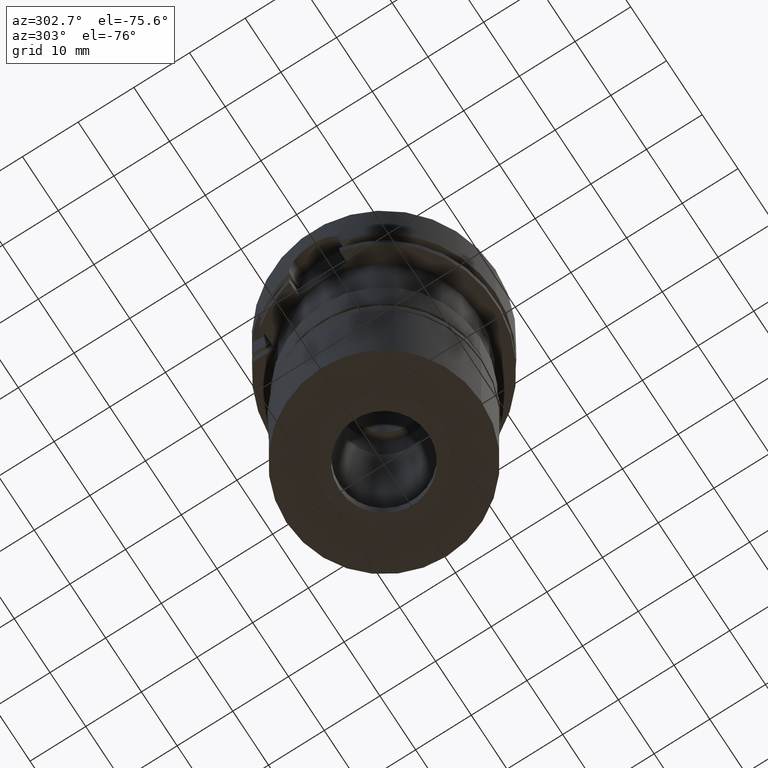
[diagram: clean part render]
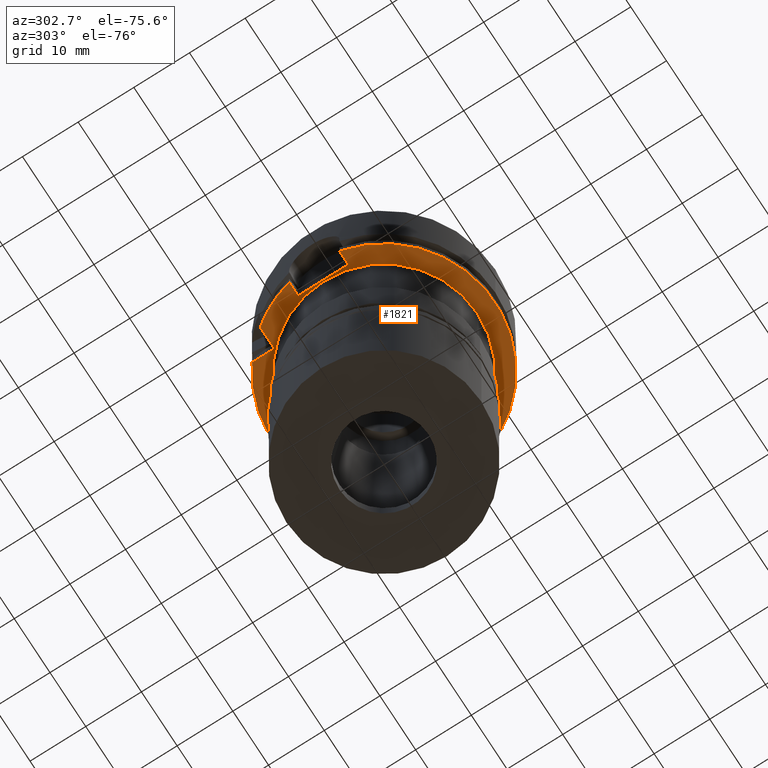
[diagram: same view with one face highlighted and labeled with its STEP entity id]
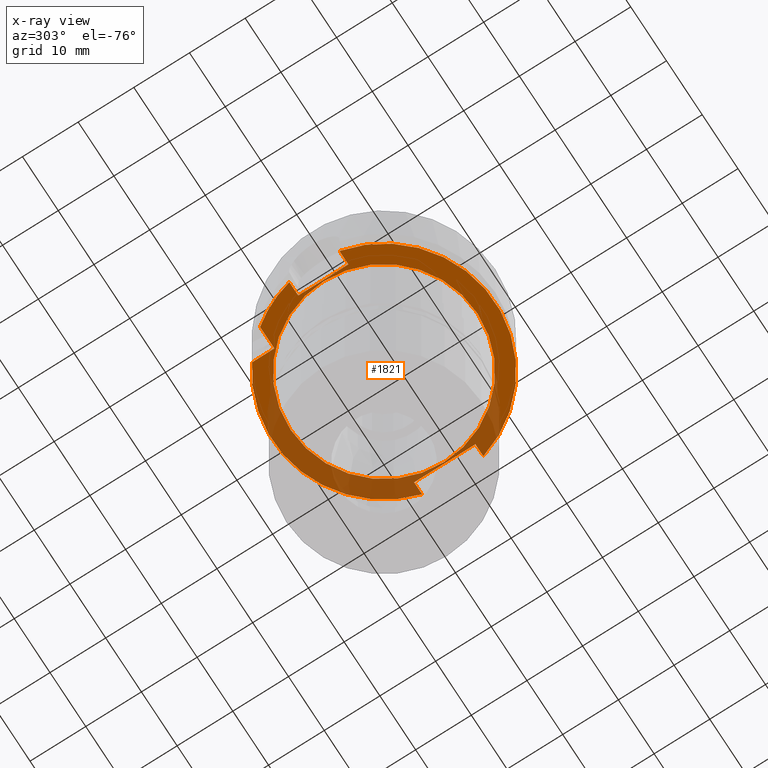
[diagram: x-ray of the same camera — body ghosted, the highlighted face saturated]
A machine part, auxiliary view. The second image highlights one B-rep face of the part: STEP entity #1821.
The next image is the same camera in x-ray: the body ghosted, the highlighted face saturated — about 39% of this face is hidden behind the body in this view.
In plain terms, the highlighted planar face has unit normal (0, 0, 1).
Its self-contained STEP definition (entity closure, byte-faithful):
#1 = AXIS2_PLACEMENT_3D ( 'NONE', #3715, #5375, #3304 ) ;
#2 = VECTOR ( 'NONE', #639, 1000.000000000000000 ) ;
#49 = DIRECTION ( 'NONE',  ( 0.0000000000000000000, 0.0000000000000000000, -1.000000000000000000 ) ) ;
#65 = VECTOR ( 'NONE', #2493, 1000.000000000000000 ) ;
#70 = DIRECTION ( 'NONE',  ( 1.000000000000000000, 0.0000000000000000000, 0.0000000000000000000 ) ) ;
#101 = VECTOR ( 'NONE', #1894, 1000.000000000000000 ) ;
#108 = EDGE_LOOP ( 'NONE', ( #5021, #1479 ) ) ;
#145 = DIRECTION ( 'NONE',  ( -1.000000000000000000, 2.550307935358999985E-14, 0.0000000000000000000 ) ) ;
#146 = EDGE_CURVE ( 'NONE', #5188, #4664, #3586, .T. ) ;
#151 = CARTESIAN_POINT ( 'NONE',  ( 17.00000000000000000, 5.500000000000000000, -20.00000000000000000 ) ) ;
#173 = ORIENTED_EDGE ( 'NONE', *, *, #4013, .T. ) ;
#312 = ORIENTED_EDGE ( 'NONE', *, *, #634, .F. ) ;
#428 = EDGE_CURVE ( 'NONE', #3517, #499, #1826, .T. ) ;
#445 = ORIENTED_EDGE ( 'NONE', *, *, #4870, .T. ) ;
#499 = VERTEX_POINT ( 'NONE', #2851 ) ;
#577 = DIRECTION ( 'NONE',  ( 0.0000000000000000000, 0.0000000000000000000, 1.000000000000000000 ) ) ;
#612 = LINE ( 'NONE', #151, #101 ) ;
#634 = EDGE_CURVE ( 'NONE', #4764, #3517, #774, .T. ) ;
#639 = DIRECTION ( 'NONE',  ( -1.000000000000000000, -1.449839272533000158E-13, 0.0000000000000000000 ) ) ;
#774 = CIRCLE ( 'NONE', #1, 20.00000000000000000 ) ;
#805 = ORIENTED_EDGE ( 'NONE', *, *, #2023, .F. ) ;
#924 = DIRECTION ( 'NONE',  ( 0.0000000000000000000, -1.000000000000000000, 0.0000000000000000000 ) ) ;
#1022 = DIRECTION ( 'NONE',  ( 0.0000000000000000000, 1.000000000000000000, 0.0000000000000000000 ) ) ;
#1193 = DIRECTION ( 'NONE',  ( 0.0000000000000000000, 0.0000000000000000000, -1.000000000000000000 ) ) ;
#1202 = VECTOR ( 'NONE', #5170, 1000.000000000000000 ) ;
#1233 = CARTESIAN_POINT ( 'NONE',  ( -19.48717526991000071, -4.500000000000000000, -20.00000000000000000 ) ) ;
#1319 = CARTESIAN_POINT ( 'NONE',  ( -17.00000000000000000, -4.500000000000000000, -20.00000000000000000 ) ) ;
#1370 = EDGE_CURVE ( 'NONE', #4664, #5188, #3105, .T. ) ;
#1372 = DIRECTION ( 'NONE',  ( 0.0000000000000000000, 0.0000000000000000000, 1.000000000000000000 ) ) ;
#1375 = AXIS2_PLACEMENT_3D ( 'NONE', #4203, #5047, #70 ) ;
#1394 = CARTESIAN_POINT ( 'NONE',  ( 0.0000000000000000000, 0.0000000000000000000, -20.00000000000000000 ) ) ;
#1479 = ORIENTED_EDGE ( 'NONE', *, *, #1370, .F. ) ;
#1565 = CIRCLE ( 'NONE', #4709, 20.00000000000000000 ) ;
#1742 = FACE_BOUND ( 'NONE', #108, .T. ) ;
#1799 = CARTESIAN_POINT ( 'NONE',  ( 19.22888452303000051, -5.500000000000000000, -20.00000000000000000 ) ) ;
#1821 = ADVANCED_FACE ( 'NONE', ( #3760, #1742 ), #2141, .F. ) ;
#1826 = LINE ( 'NONE', #1799, #3406 ) ;
#1851 = CARTESIAN_POINT ( 'NONE',  ( 0.0000000000000000000, 0.0000000000000000000, -20.00000000000000000 ) ) ;
#1894 = DIRECTION ( 'NONE',  ( 0.0000000000000000000, -1.000000000000000000, 0.0000000000000000000 ) ) ;
#1926 = AXIS2_PLACEMENT_3D ( 'NONE', #3736, #1193, #5398 ) ;
#1970 = ORIENTED_EDGE ( 'NONE', *, *, #2846, .F. ) ;
#2023 = EDGE_CURVE ( 'NONE', #3301, #4235, #5356, .T. ) ;
#2044 = VERTEX_POINT ( 'NONE', #4195 ) ;
#2080 = AXIS2_PLACEMENT_3D ( 'NONE', #5177, #577, #2237 ) ;
#2104 = CARTESIAN_POINT ( 'NONE',  ( 0.0000000000000000000, -16.80000000000000071, -20.00000000000000000 ) ) ;
#2121 = EDGE_CURVE ( 'NONE', #4235, #4764, #4283, .T. ) ;
#2141 = PLANE ( 'NONE',  #1375 ) ;
#2237 = DIRECTION ( 'NONE',  ( -0.8000000000000000444, 0.5999999999999999778, 0.0000000000000000000 ) ) ;
#2284 = CARTESIAN_POINT ( 'NONE',  ( -12.00000000000000000, 12.00000000000000000, -20.00000000000000000 ) ) ;
#2307 = LINE ( 'NONE', #2284, #1202 ) ;
#2326 = VECTOR ( 'NONE', #2912, 1000.000000000000000 ) ;
#2389 = EDGE_CURVE ( 'NONE', #2611, #2044, #2902, .T. ) ;
#2472 = VERTEX_POINT ( 'NONE', #3767 ) ;
#2493 = DIRECTION ( 'NONE',  ( 0.0000000000000000000, 1.000000000000000000, 0.0000000000000000000 ) ) ;
#2611 = VERTEX_POINT ( 'NONE', #3201 ) ;
#2846 = EDGE_CURVE ( 'NONE', #2611, #3849, #2307, .T. ) ;
#2851 = CARTESIAN_POINT ( 'NONE',  ( 17.00000000000000000, -5.500000000000000000, -20.00000000000000000 ) ) ;
#2858 = CARTESIAN_POINT ( 'NONE',  ( -17.00000000000000000, 4.500000000000000000, -20.00000000000000000 ) ) ;
#2896 = ORIENTED_EDGE ( 'NONE', *, *, #4845, .T. ) ;
#2902 = LINE ( 'NONE', #4180, #65 ) ;
#2912 = DIRECTION ( 'NONE',  ( 0.0000000000000000000, -1.000000000000000000, 0.0000000000000000000 ) ) ;
#3087 = LINE ( 'NONE', #5126, #2 ) ;
#3092 = CARTESIAN_POINT ( 'NONE',  ( -17.00000000000000000, 4.500000000000000000, -20.00000000000000000 ) ) ;
#3105 = CIRCLE ( 'NONE', #4688, 16.80000000000000071 ) ;
#3107 = ORIENTED_EDGE ( 'NONE', *, *, #428, .F. ) ;
#3201 = CARTESIAN_POINT ( 'NONE',  ( -12.00000000000000000, 12.00000000000000000, -20.00000000000000000 ) ) ;
#3301 = VERTEX_POINT ( 'NONE', #3092 ) ;
#3304 = DIRECTION ( 'NONE',  ( 0.0000000000000000000, -1.000000000000000000, 0.0000000000000000000 ) ) ;
#3406 = VECTOR ( 'NONE', #4748, 1000.000000000000000 ) ;
#3429 = ORIENTED_EDGE ( 'NONE', *, *, #2121, .F. ) ;
#3453 = VERTEX_POINT ( 'NONE', #4392 ) ;
#3477 = CARTESIAN_POINT ( 'NONE',  ( 19.22888452303000051, 5.500000000000000000, -20.00000000000000000 ) ) ;
#3510 = EDGE_CURVE ( 'NONE', #3818, #2044, #1565, .T. ) ;
#3511 = ORIENTED_EDGE ( 'NONE', *, *, #2389, .T. ) ;
#3517 = VERTEX_POINT ( 'NONE', #4361 ) ;
#3536 = LINE ( 'NONE', #3477, #4615 ) ;
#3586 = CIRCLE ( 'NONE', #1926, 16.80000000000000071 ) ;
#3610 = CARTESIAN_POINT ( 'NONE',  ( -17.00000000000000000, -4.500000000000000000, -20.00000000000000000 ) ) ;
#3638 = CARTESIAN_POINT ( 'NONE',  ( 0.0000000000000000000, 16.80000000000000071, -20.00000000000000000 ) ) ;
#3715 = CARTESIAN_POINT ( 'NONE',  ( 0.0000000000000000000, 0.0000000000000000000, -20.00000000000000000 ) ) ;
#3726 = VECTOR ( 'NONE', #4774, 1000.000000000000000 ) ;
#3736 = CARTESIAN_POINT ( 'NONE',  ( 0.0000000000000000000, 0.0000000000000000000, -20.00000000000000000 ) ) ;
#3760 = FACE_OUTER_BOUND ( 'NONE', #3861, .T. ) ;
#3767 = CARTESIAN_POINT ( 'NONE',  ( 17.00000000000000000, 5.500000000000000000, -20.00000000000000000 ) ) ;
#3818 = VERTEX_POINT ( 'NONE', #4215 ) ;
#3849 = VERTEX_POINT ( 'NONE', #4555 ) ;
#3861 = EDGE_LOOP ( 'NONE', ( #4310, #173, #2896, #3107, #312, #3429, #805, #445, #4281, #1970, #3511 ) ) ;
#4013 = EDGE_CURVE ( 'NONE', #3818, #2472, #3536, .T. ) ;
#4048 = EDGE_CURVE ( 'NONE', #3849, #3453, #4522, .T. ) ;
#4180 = CARTESIAN_POINT ( 'NONE',  ( -12.00000000000000000, 12.00000000000000000, -20.00000000000000000 ) ) ;
#4195 = CARTESIAN_POINT ( 'NONE',  ( -12.00000000000000000, 16.00000000000000000, -20.00000000000000000 ) ) ;
#4203 = CARTESIAN_POINT ( 'NONE',  ( 0.0000000000000000000, 0.0000000000000000000, -20.00000000000000000 ) ) ;
#4215 = CARTESIAN_POINT ( 'NONE',  ( 19.22888452303000051, 5.500000000000000000, -20.00000000000000000 ) ) ;
#4235 = VERTEX_POINT ( 'NONE', #3610 ) ;
#4281 = ORIENTED_EDGE ( 'NONE', *, *, #4048, .F. ) ;
#4283 = LINE ( 'NONE', #1319, #3726 ) ;
#4310 = ORIENTED_EDGE ( 'NONE', *, *, #3510, .F. ) ;
#4361 = CARTESIAN_POINT ( 'NONE',  ( 19.22888452303000051, -5.500000000000000000, -20.00000000000000000 ) ) ;
#4392 = CARTESIAN_POINT ( 'NONE',  ( -19.48717526991000071, 4.500000000000000000, -20.00000000000000000 ) ) ;
#4522 = CIRCLE ( 'NONE', #2080, 20.00000000000000000 ) ;
#4555 = CARTESIAN_POINT ( 'NONE',  ( -16.00000000000000000, 12.00000000000000000, -20.00000000000000000 ) ) ;
#4615 = VECTOR ( 'NONE', #145, 1000.000000000000000 ) ;
#4664 = VERTEX_POINT ( 'NONE', #2104 ) ;
#4688 = AXIS2_PLACEMENT_3D ( 'NONE', #1394, #49, #924 ) ;
#4709 = AXIS2_PLACEMENT_3D ( 'NONE', #1851, #1372, #1022 ) ;
#4748 = DIRECTION ( 'NONE',  ( -1.000000000000000000, -2.191670881949000037E-14, 0.0000000000000000000 ) ) ;
#4764 = VERTEX_POINT ( 'NONE', #1233 ) ;
#4774 = DIRECTION ( 'NONE',  ( -1.000000000000000000, 1.449839272533000158E-13, 0.0000000000000000000 ) ) ;
#4845 = EDGE_CURVE ( 'NONE', #2472, #499, #612, .T. ) ;
#4870 = EDGE_CURVE ( 'NONE', #3301, #3453, #3087, .T. ) ;
#5021 = ORIENTED_EDGE ( 'NONE', *, *, #146, .F. ) ;
#5047 = DIRECTION ( 'NONE',  ( 0.0000000000000000000, 0.0000000000000000000, 1.000000000000000000 ) ) ;
#5126 = CARTESIAN_POINT ( 'NONE',  ( -17.00000000000000000, 4.500000000000000000, -20.00000000000000000 ) ) ;
#5170 = DIRECTION ( 'NONE',  ( -1.000000000000000000, 0.0000000000000000000, 0.0000000000000000000 ) ) ;
#5177 = CARTESIAN_POINT ( 'NONE',  ( 0.0000000000000000000, 0.0000000000000000000, -20.00000000000000000 ) ) ;
#5188 = VERTEX_POINT ( 'NONE', #3638 ) ;
#5356 = LINE ( 'NONE', #2858, #2326 ) ;
#5375 = DIRECTION ( 'NONE',  ( 0.0000000000000000000, 0.0000000000000000000, 1.000000000000000000 ) ) ;
#5398 = DIRECTION ( 'NONE',  ( 0.0000000000000000000, 1.000000000000000000, 0.0000000000000000000 ) ) ;